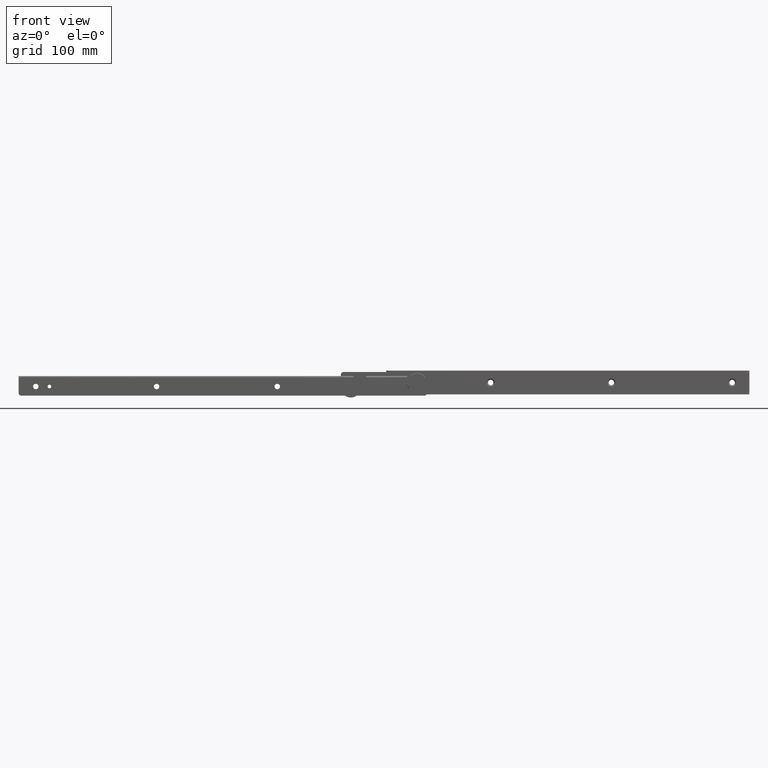
[diagram: clean part render]
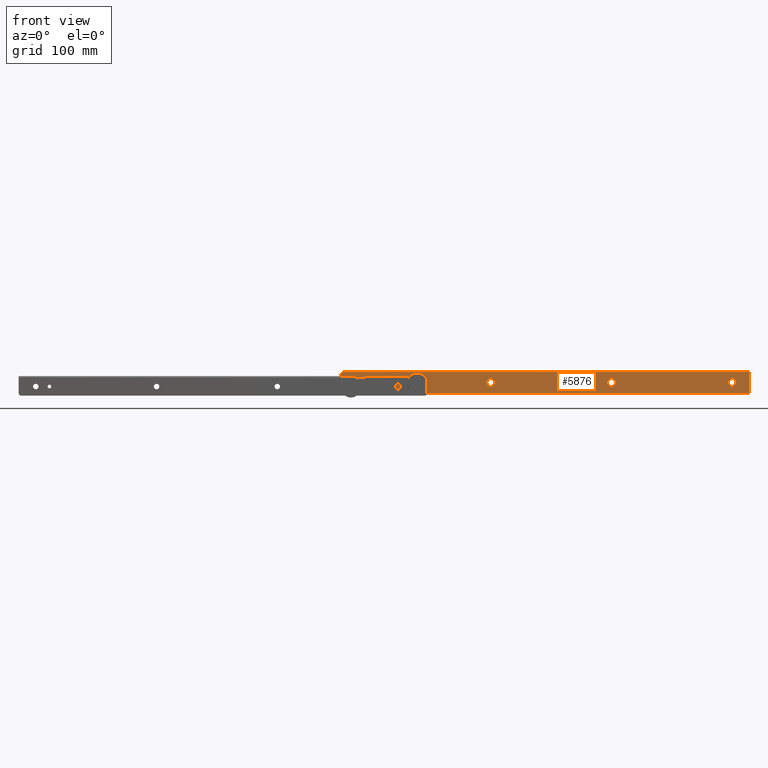
[diagram: same view with one face highlighted and labeled with its STEP entity id]
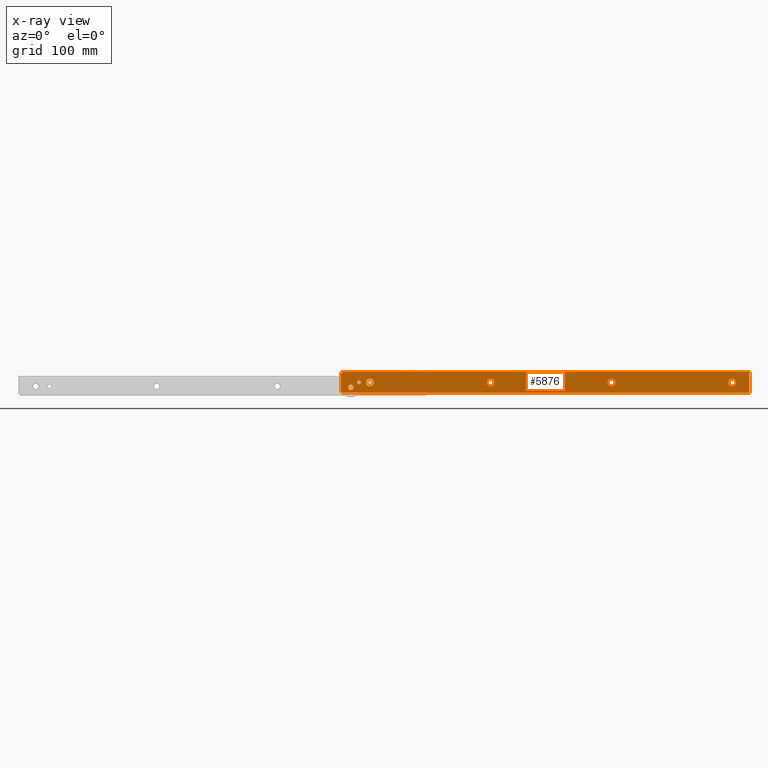
[diagram: x-ray of the same camera — body ghosted, the highlighted face saturated]
A machine part, front view. The second image highlights one B-rep face of the part: STEP entity #5876.
The next image is the same camera in x-ray: the body ghosted, the highlighted face saturated — about 0% of this face is hidden behind the body in this view.
In plain terms, the highlighted face is a freeform B-spline surface patch.
Its self-contained STEP definition (entity closure, byte-faithful):
#3986=CARTESIAN_POINT('',(27.733255280861350,-1.600000006890920,-7.633750456536660));
#3987=VERTEX_POINT('',#3986);
#3993=CARTESIAN_POINT('',(32.0,-1.599999999999910,-11.399999999999800));
#3994=VERTEX_POINT('',#3993);
#3995=CARTESIAN_POINT('',(32.0,-1.599999999999910,-11.399999999999800));
#3996=CARTESIAN_POINT('',(28.204396103444338,-1.599999999999910,-11.399999999999798));
#3997=CARTESIAN_POINT('',(27.733255280861357,-1.600000006890920,-7.633750456536660));
#4005=(BOUNDED_CURVE()B_SPLINE_CURVE(2,(#3995,#3996,#3997),.UNSPECIFIED.,.F.,.U.)B_SPLINE_CURVE_WITH_KNOTS((3,3),(0.500000000000000,0.728526067321901),.UNSPECIFIED.)CURVE()GEOMETRIC_REPRESENTATION_ITEM()RATIONAL_B_SPLINE_CURVE((1.0,0.732265058237234,0.954005423080094))REPRESENTATION_ITEM(''));
#4006=EDGE_CURVE('',#3994,#3987,#4005,.T.);
#4008=CARTESIAN_POINT('',(36.299836271252858,-1.600000002750304,-7.062475879268996));
#4009=VERTEX_POINT('',#4008);
#4010=CARTESIAN_POINT('',(36.299836271252858,-1.600000002750304,-7.062475879268996));
#4011=CARTESIAN_POINT('',(36.299999999999997,-1.599999999999910,-7.081237573401458));
#4012=CARTESIAN_POINT('',(36.299999999999997,-1.599999999999910,-7.099999999999799));
#4013=CARTESIAN_POINT('',(36.299999999999997,-1.599999999999911,-11.399999999999798));
#4014=CARTESIAN_POINT('',(32.0,-1.599999999999910,-11.399999999999800));
#4022=(BOUNDED_CURVE()B_SPLINE_CURVE(2,(#4010,#4011,#4012,#4013,#4014),.UNSPECIFIED.,.F.,.U.)B_SPLINE_CURVE_WITH_KNOTS((3,2,3),(0.248460104184678,0.250000000000000,0.500000000000000),.UNSPECIFIED.)CURVE()GEOMETRIC_REPRESENTATION_ITEM()RATIONAL_B_SPLINE_CURVE((0.996414024674496,0.998195899832052,1.0,0.707106781186547,1.0))REPRESENTATION_ITEM(''));
#4023=EDGE_CURVE('',#4009,#3994,#4022,.T.);
#4103=CARTESIAN_POINT('',(32.0,-1.599999999999910,-2.799999999999799));
#4104=VERTEX_POINT('',#4103);
#4105=CARTESIAN_POINT('',(32.0,-1.599999999999910,-2.799999999999799));
#4106=CARTESIAN_POINT('',(36.262638169733073,-1.599999999999911,-2.799999999999800));
#4107=CARTESIAN_POINT('',(36.299836271252858,-1.600000002750303,-7.062475879268996));
#4115=(BOUNDED_CURVE()B_SPLINE_CURVE(2,(#4105,#4106,#4107),.UNSPECIFIED.,.F.,.U.)B_SPLINE_CURVE_WITH_KNOTS((3,3),(0.0,0.248460104184678),.UNSPECIFIED.)CURVE()GEOMETRIC_REPRESENTATION_ITEM()RATIONAL_B_SPLINE_CURVE((1.0,0.708910881354496,0.996414024674496))REPRESENTATION_ITEM(''));
#4116=EDGE_CURVE('',#4104,#4009,#4115,.T.);
#4118=CARTESIAN_POINT('',(27.733255280861353,-1.600000006890920,-7.633750456536660));
#4119=CARTESIAN_POINT('',(27.699999999999999,-1.599999999999910,-7.367911235841441));
#4120=CARTESIAN_POINT('',(27.699999999999999,-1.599999999999910,-7.099999999999799));
#4121=CARTESIAN_POINT('',(27.700000000000006,-1.599999999999911,-2.799999999999800));
#4122=CARTESIAN_POINT('',(32.0,-1.599999999999910,-2.799999999999799));
#4130=(BOUNDED_CURVE()B_SPLINE_CURVE(2,(#4118,#4119,#4120,#4121,#4122),.UNSPECIFIED.,.F.,.U.)B_SPLINE_CURVE_WITH_KNOTS((3,2,3),(0.728526067321901,0.750000000000000,1.0),.UNSPECIFIED.)CURVE()GEOMETRIC_REPRESENTATION_ITEM()RATIONAL_B_SPLINE_CURVE((0.954005423080093,0.974841722949313,1.0,0.707106781186547,1.0))REPRESENTATION_ITEM(''));
#4131=EDGE_CURVE('',#3987,#4104,#4130,.T.);
#4172=CARTESIAN_POINT('',(160.733255280861300,-1.600000006890916,-7.633750456536859));
#4173=VERTEX_POINT('',#4172);
#4179=CARTESIAN_POINT('',(165.0,-1.599999999999910,-11.400000000000000));
#4180=VERTEX_POINT('',#4179);
#4181=CARTESIAN_POINT('',(165.0,-1.599999999999910,-11.400000000000000));
#4182=CARTESIAN_POINT('',(161.204396103444280,-1.599999999999910,-11.399999999999999));
#4183=CARTESIAN_POINT('',(160.733255280861330,-1.600000006890915,-7.633750456536859));
#4191=(BOUNDED_CURVE()B_SPLINE_CURVE(2,(#4181,#4182,#4183),.UNSPECIFIED.,.F.,.U.)B_SPLINE_CURVE_WITH_KNOTS((3,3),(0.500000000000000,0.728526067321901),.UNSPECIFIED.)CURVE()GEOMETRIC_REPRESENTATION_ITEM()RATIONAL_B_SPLINE_CURVE((1.0,0.732265058237234,0.954005423080094))REPRESENTATION_ITEM(''));
#4192=EDGE_CURVE('',#4180,#4173,#4191,.T.);
#4194=CARTESIAN_POINT('',(169.299836271252900,-1.600000002750300,-7.062475879269200));
#4195=VERTEX_POINT('',#4194);
#4196=CARTESIAN_POINT('',(169.299836271252900,-1.600000002750300,-7.062475879269200));
#4197=CARTESIAN_POINT('',(169.300000000000070,-1.599999999999910,-7.081237573401661));
#4198=CARTESIAN_POINT('',(169.300000000000010,-1.599999999999910,-7.100000000000001));
#4199=CARTESIAN_POINT('',(169.300000000000040,-1.599999999999911,-11.399999999999999));
#4200=CARTESIAN_POINT('',(165.0,-1.599999999999910,-11.400000000000000));
#4208=(BOUNDED_CURVE()B_SPLINE_CURVE(2,(#4196,#4197,#4198,#4199,#4200),.UNSPECIFIED.,.F.,.U.)B_SPLINE_CURVE_WITH_KNOTS((3,2,3),(0.248460104184678,0.250000000000000,0.500000000000000),.UNSPECIFIED.)CURVE()GEOMETRIC_REPRESENTATION_ITEM()RATIONAL_B_SPLINE_CURVE((0.996414024674496,0.998195899832052,1.0,0.707106781186547,1.0))REPRESENTATION_ITEM(''));
#4209=EDGE_CURVE('',#4195,#4180,#4208,.T.);
#4289=CARTESIAN_POINT('',(165.0,-1.599999999999910,-2.800000000000000));
#4290=VERTEX_POINT('',#4289);
#4291=CARTESIAN_POINT('',(165.0,-1.599999999999910,-2.800000000000000));
#4292=CARTESIAN_POINT('',(169.262638169733090,-1.599999999999911,-2.800000000000000));
#4293=CARTESIAN_POINT('',(169.299836271252900,-1.600000002750300,-7.062475879269200));
#4301=(BOUNDED_CURVE()B_SPLINE_CURVE(2,(#4291,#4292,#4293),.UNSPECIFIED.,.F.,.U.)B_SPLINE_CURVE_WITH_KNOTS((3,3),(0.0,0.248460104184678),.UNSPECIFIED.)CURVE()GEOMETRIC_REPRESENTATION_ITEM()RATIONAL_B_SPLINE_CURVE((1.0,0.708910881354496,0.996414024674496))REPRESENTATION_ITEM(''));
#4302=EDGE_CURVE('',#4290,#4195,#4301,.T.);
#4304=CARTESIAN_POINT('',(160.733255280861330,-1.600000006890915,-7.633750456536859));
#4305=CARTESIAN_POINT('',(160.699999999999990,-1.599999999999911,-7.367911235841640));
#4306=CARTESIAN_POINT('',(160.699999999999990,-1.599999999999910,-7.100000000000001));
#4307=CARTESIAN_POINT('',(160.700000000000050,-1.599999999999911,-2.800000000000000));
#4308=CARTESIAN_POINT('',(165.0,-1.599999999999910,-2.800000000000000));
#4316=(BOUNDED_CURVE()B_SPLINE_CURVE(2,(#4304,#4305,#4306,#4307,#4308),.UNSPECIFIED.,.F.,.U.)B_SPLINE_CURVE_WITH_KNOTS((3,2,3),(0.728526067321901,0.750000000000000,1.0),.UNSPECIFIED.)CURVE()GEOMETRIC_REPRESENTATION_ITEM()RATIONAL_B_SPLINE_CURVE((0.954005423080094,0.974841722949313,1.0,0.707106781186547,1.0))REPRESENTATION_ITEM(''));
#4317=EDGE_CURVE('',#4173,#4290,#4316,.T.);
#4358=CARTESIAN_POINT('',(293.733255280861270,-1.600000006890920,-7.633750456536860));
#4359=VERTEX_POINT('',#4358);
#4365=CARTESIAN_POINT('',(298.0,-1.599999999999910,-11.400000000000000));
#4366=VERTEX_POINT('',#4365);
#4367=CARTESIAN_POINT('',(298.0,-1.599999999999910,-11.400000000000000));
#4368=CARTESIAN_POINT('',(294.204396103444370,-1.599999999999910,-11.399999999999999));
#4369=CARTESIAN_POINT('',(293.733255280861270,-1.600000006890920,-7.633750456536860));
#4377=(BOUNDED_CURVE()B_SPLINE_CURVE(2,(#4367,#4368,#4369),.UNSPECIFIED.,.F.,.U.)B_SPLINE_CURVE_WITH_KNOTS((3,3),(0.500000000000000,0.728526067321901),.UNSPECIFIED.)CURVE()GEOMETRIC_REPRESENTATION_ITEM()RATIONAL_B_SPLINE_CURVE((1.0,0.732265058237234,0.954005423080094))REPRESENTATION_ITEM(''));
#4378=EDGE_CURVE('',#4366,#4359,#4377,.T.);
#4380=CARTESIAN_POINT('',(302.299836271252790,-1.600000002750307,-7.062475879269200));
#4381=VERTEX_POINT('',#4380);
#4382=CARTESIAN_POINT('',(302.299836271252900,-1.600000002750307,-7.062475879269200));
#4383=CARTESIAN_POINT('',(302.300000000000070,-1.599999999999910,-7.081237573401661));
#4384=CARTESIAN_POINT('',(302.300000000000010,-1.599999999999910,-7.100000000000001));
#4385=CARTESIAN_POINT('',(302.300000000000010,-1.599999999999911,-11.399999999999999));
#4386=CARTESIAN_POINT('',(298.0,-1.599999999999910,-11.400000000000000));
#4394=(BOUNDED_CURVE()B_SPLINE_CURVE(2,(#4382,#4383,#4384,#4385,#4386),.UNSPECIFIED.,.F.,.U.)B_SPLINE_CURVE_WITH_KNOTS((3,2,3),(0.248460104184678,0.250000000000000,0.500000000000000),.UNSPECIFIED.)CURVE()GEOMETRIC_REPRESENTATION_ITEM()RATIONAL_B_SPLINE_CURVE((0.996414024674496,0.998195899832052,1.0,0.707106781186547,1.0))REPRESENTATION_ITEM(''));
#4395=EDGE_CURVE('',#4381,#4366,#4394,.T.);
#4475=CARTESIAN_POINT('',(298.0,-1.599999999999910,-2.800000000000000));
#4476=VERTEX_POINT('',#4475);
#4477=CARTESIAN_POINT('',(298.0,-1.599999999999910,-2.800000000000000));
#4478=CARTESIAN_POINT('',(302.262638169733010,-1.599999999999911,-2.800000000000000));
#4479=CARTESIAN_POINT('',(302.299836271252900,-1.600000002750307,-7.062475879269200));
#4487=(BOUNDED_CURVE()B_SPLINE_CURVE(2,(#4477,#4478,#4479),.UNSPECIFIED.,.F.,.U.)B_SPLINE_CURVE_WITH_KNOTS((3,3),(0.0,0.248460104184678),.UNSPECIFIED.)CURVE()GEOMETRIC_REPRESENTATION_ITEM()RATIONAL_B_SPLINE_CURVE((1.0,0.708910881354496,0.996414024674496))REPRESENTATION_ITEM(''));
#4488=EDGE_CURVE('',#4476,#4381,#4487,.T.);
#4490=CARTESIAN_POINT('',(293.733255280861270,-1.600000006890920,-7.633750456536860));
#4491=CARTESIAN_POINT('',(293.699999999999930,-1.599999999999911,-7.367911235841640));
#4492=CARTESIAN_POINT('',(293.699999999999990,-1.599999999999910,-7.100000000000001));
#4493=CARTESIAN_POINT('',(293.700000000000050,-1.599999999999911,-2.800000000000000));
#4494=CARTESIAN_POINT('',(298.0,-1.599999999999910,-2.800000000000000));
#4502=(BOUNDED_CURVE()B_SPLINE_CURVE(2,(#4490,#4491,#4492,#4493,#4494),.UNSPECIFIED.,.F.,.U.)B_SPLINE_CURVE_WITH_KNOTS((3,2,3),(0.728526067321901,0.750000000000000,1.0),.UNSPECIFIED.)CURVE()GEOMETRIC_REPRESENTATION_ITEM()RATIONAL_B_SPLINE_CURVE((0.954005423080094,0.974841722949313,1.0,0.707106781186547,1.0))REPRESENTATION_ITEM(''));
#4503=EDGE_CURVE('',#4359,#4476,#4502,.T.);
#4544=CARTESIAN_POINT('',(426.733255280861270,-1.600000006890942,-7.633750456536869));
#4545=VERTEX_POINT('',#4544);
#4551=CARTESIAN_POINT('',(431.0,-1.599999999999910,-11.400000000000000));
#4552=VERTEX_POINT('',#4551);
#4553=CARTESIAN_POINT('',(431.0,-1.599999999999910,-11.400000000000000));
#4554=CARTESIAN_POINT('',(427.204396103444250,-1.599999999999910,-11.399999999999999));
#4555=CARTESIAN_POINT('',(426.733255280861270,-1.600000006890942,-7.633750456536869));
#4563=(BOUNDED_CURVE()B_SPLINE_CURVE(2,(#4553,#4554,#4555),.UNSPECIFIED.,.F.,.U.)B_SPLINE_CURVE_WITH_KNOTS((3,3),(0.500000000000000,0.728526067321901),.UNSPECIFIED.)CURVE()GEOMETRIC_REPRESENTATION_ITEM()RATIONAL_B_SPLINE_CURVE((1.0,0.732265058237234,0.954005423080094))REPRESENTATION_ITEM(''));
#4564=EDGE_CURVE('',#4552,#4545,#4563,.T.);
#4566=CARTESIAN_POINT('',(435.299836271252790,-1.600000002750307,-7.062475879269199));
#4567=VERTEX_POINT('',#4566);
#4568=CARTESIAN_POINT('',(435.299836271252790,-1.600000002750308,-7.062475879269199));
#4569=CARTESIAN_POINT('',(435.299999999999950,-1.599999999999910,-7.081237573401660));
#4570=CARTESIAN_POINT('',(435.300000000000010,-1.599999999999910,-7.100000000000001));
#4571=CARTESIAN_POINT('',(435.299999999999950,-1.599999999999911,-11.399999999999999));
#4572=CARTESIAN_POINT('',(431.0,-1.599999999999910,-11.400000000000000));
#4580=(BOUNDED_CURVE()B_SPLINE_CURVE(2,(#4568,#4569,#4570,#4571,#4572),.UNSPECIFIED.,.F.,.U.)B_SPLINE_CURVE_WITH_KNOTS((3,2,3),(0.248460104184678,0.250000000000000,0.500000000000000),.UNSPECIFIED.)CURVE()GEOMETRIC_REPRESENTATION_ITEM()RATIONAL_B_SPLINE_CURVE((0.996414024674496,0.998195899832052,1.0,0.707106781186547,1.0))REPRESENTATION_ITEM(''));
#4581=EDGE_CURVE('',#4567,#4552,#4580,.T.);
#4661=CARTESIAN_POINT('',(431.0,-1.599999999999910,-2.800000000000000));
#4662=VERTEX_POINT('',#4661);
#4663=CARTESIAN_POINT('',(431.0,-1.599999999999910,-2.800000000000000));
#4664=CARTESIAN_POINT('',(435.262638169732950,-1.599999999999911,-2.800000000000000));
#4665=CARTESIAN_POINT('',(435.299836271252840,-1.600000002750307,-7.062475879269199));
#4673=(BOUNDED_CURVE()B_SPLINE_CURVE(2,(#4663,#4664,#4665),.UNSPECIFIED.,.F.,.U.)B_SPLINE_CURVE_WITH_KNOTS((3,3),(0.0,0.248460104184678),.UNSPECIFIED.)CURVE()GEOMETRIC_REPRESENTATION_ITEM()RATIONAL_B_SPLINE_CURVE((1.0,0.708910881354496,0.996414024674496))REPRESENTATION_ITEM(''));
#4674=EDGE_CURVE('',#4662,#4567,#4673,.T.);
#4676=CARTESIAN_POINT('',(426.733255280861330,-1.600000006890942,-7.633750456536869));
#4677=CARTESIAN_POINT('',(426.700000000000050,-1.599999999999910,-7.367911235841648));
#4678=CARTESIAN_POINT('',(426.699999999999990,-1.599999999999910,-7.100000000000001));
#4679=CARTESIAN_POINT('',(426.699999999999820,-1.599999999999911,-2.800000000000000));
#4680=CARTESIAN_POINT('',(431.0,-1.599999999999910,-2.800000000000000));
#4688=(BOUNDED_CURVE()B_SPLINE_CURVE(2,(#4676,#4677,#4678,#4679,#4680),.UNSPECIFIED.,.F.,.U.)B_SPLINE_CURVE_WITH_KNOTS((3,2,3),(0.728526067321901,0.750000000000000,1.0),.UNSPECIFIED.)CURVE()GEOMETRIC_REPRESENTATION_ITEM()RATIONAL_B_SPLINE_CURVE((0.954005423080093,0.974841722949312,1.0,0.707106781186547,1.0))REPRESENTATION_ITEM(''));
#4689=EDGE_CURVE('',#4545,#4662,#4688,.T.);
#4730=CARTESIAN_POINT('',(8.072814669445494,-1.599999999999935,-12.966177607980541));
#4731=VERTEX_POINT('',#4730);
#4737=CARTESIAN_POINT('',(11.0,-1.599999999999935,-15.549999999999800));
#4738=VERTEX_POINT('',#4737);
#4739=CARTESIAN_POINT('',(11.0,-1.599999999999935,-15.549999999999800));
#4740=CARTESIAN_POINT('',(8.396039132865415,-1.599999999999934,-15.549999999999798));
#4741=CARTESIAN_POINT('',(8.072814669445496,-1.599999999999935,-12.966177607980539));
#4749=(BOUNDED_CURVE()B_SPLINE_CURVE(2,(#4739,#4740,#4741),.UNSPECIFIED.,.F.,.U.)B_SPLINE_CURVE_WITH_KNOTS((3,3),(0.500000000000000,0.728526070816675),.UNSPECIFIED.)CURVE()GEOMETRIC_REPRESENTATION_ITEM()RATIONAL_B_SPLINE_CURVE((1.0,0.732265054142853,0.954005429862098))REPRESENTATION_ITEM(''));
#4750=EDGE_CURVE('',#4738,#4731,#4749,.T.);
#4752=CARTESIAN_POINT('',(13.949887672970361,-1.599999999999935,-12.574256712379579));
#4753=VERTEX_POINT('',#4752);
#4754=CARTESIAN_POINT('',(13.949887672970366,-1.599999999999935,-12.574256712379585));
#4755=CARTESIAN_POINT('',(13.950000000000001,-1.599999999999935,-12.587128107178261));
#4756=CARTESIAN_POINT('',(13.949999999999999,-1.599999999999935,-12.599999999999801));
#4757=CARTESIAN_POINT('',(13.949999999999999,-1.599999999999935,-15.549999999999795));
#4758=CARTESIAN_POINT('',(11.0,-1.599999999999935,-15.549999999999800));
#4766=(BOUNDED_CURVE()B_SPLINE_CURVE(2,(#4754,#4755,#4756,#4757,#4758),.UNSPECIFIED.,.F.,.U.)B_SPLINE_CURVE_WITH_KNOTS((3,2,3),(0.248460104721566,0.250000000000000,0.500000000000000),.UNSPECIFIED.)CURVE()GEOMETRIC_REPRESENTATION_ITEM()RATIONAL_B_SPLINE_CURVE((0.996414025917006,0.998195900461056,1.0,0.707106781186548,1.0))REPRESENTATION_ITEM(''));
#4767=EDGE_CURVE('',#4753,#4738,#4766,.T.);
#4847=CARTESIAN_POINT('',(11.0,-1.599999999999935,-9.649999999999800));
#4848=VERTEX_POINT('',#4847);
#4849=CARTESIAN_POINT('',(11.0,-1.599999999999935,-9.649999999999800));
#4850=CARTESIAN_POINT('',(13.924368055591245,-1.599999999999935,-9.649999999999800));
#4851=CARTESIAN_POINT('',(13.949887672970366,-1.599999999999935,-12.574256712379585));
#4859=(BOUNDED_CURVE()B_SPLINE_CURVE(2,(#4849,#4850,#4851),.UNSPECIFIED.,.F.,.U.)B_SPLINE_CURVE_WITH_KNOTS((3,3),(0.0,0.248460104721566),.UNSPECIFIED.)CURVE()GEOMETRIC_REPRESENTATION_ITEM()RATIONAL_B_SPLINE_CURVE((1.0,0.708910880725492,0.996414025917006))REPRESENTATION_ITEM(''));
#4860=EDGE_CURVE('',#4848,#4753,#4859,.T.);
#4862=CARTESIAN_POINT('',(8.072814669445494,-1.599999999999935,-12.966177607980542));
#4863=CARTESIAN_POINT('',(8.050000000000001,-1.599999999999935,-12.783799538090454));
#4864=CARTESIAN_POINT('',(8.050000000000001,-1.599999999999935,-12.599999999999801));
#4865=CARTESIAN_POINT('',(8.050000000000001,-1.599999999999935,-9.649999999999800));
#4866=CARTESIAN_POINT('',(11.0,-1.599999999999935,-9.649999999999800));
#4874=(BOUNDED_CURVE()B_SPLINE_CURVE(2,(#4862,#4863,#4864,#4865,#4866),.UNSPECIFIED.,.F.,.U.)B_SPLINE_CURVE_WITH_KNOTS((3,2,3),(0.728526070816676,0.750000000000000,1.0),.UNSPECIFIED.)CURVE()GEOMETRIC_REPRESENTATION_ITEM()RATIONAL_B_SPLINE_CURVE((0.954005429862099,0.974841727043696,1.0,0.707106781186548,1.0))REPRESENTATION_ITEM(''));
#4875=EDGE_CURVE('',#4731,#4848,#4874,.T.);
#4916=CARTESIAN_POINT('',(18.015467575814331,-1.599999999999935,-7.348256031861590));
#4917=VERTEX_POINT('',#4916);
#4923=CARTESIAN_POINT('',(20.0,-1.599999999999935,-9.099999999999799));
#4924=VERTEX_POINT('',#4923);
#4925=CARTESIAN_POINT('',(20.0,-1.599999999999935,-9.099999999999799));
#4926=CARTESIAN_POINT('',(18.234602849370109,-1.599999999999935,-9.099999999999801));
#4927=CARTESIAN_POINT('',(18.015467575814334,-1.599999999999935,-7.348256031861590));
#4935=(BOUNDED_CURVE()B_SPLINE_CURVE(2,(#4925,#4926,#4927),.UNSPECIFIED.,.F.,.U.)B_SPLINE_CURVE_WITH_KNOTS((3,3),(0.500000000000000,0.728526066321035),.UNSPECIFIED.)CURVE()GEOMETRIC_REPRESENTATION_ITEM()RATIONAL_B_SPLINE_CURVE((1.0,0.732265059409822,0.954005421137800))REPRESENTATION_ITEM(''));
#4936=EDGE_CURVE('',#4924,#4917,#4935,.T.);
#4938=CARTESIAN_POINT('',(21.999923846055569,-1.599999999999935,-7.082546920663972));
#4939=VERTEX_POINT('',#4938);
#4940=CARTESIAN_POINT('',(21.999923846055566,-1.599999999999936,-7.082546920663972));
#4941=CARTESIAN_POINT('',(21.999999999999996,-1.599999999999935,-7.091273290018841));
#4942=CARTESIAN_POINT('',(22.0,-1.599999999999935,-7.099999999999799));
#4943=CARTESIAN_POINT('',(22.000000000000007,-1.599999999999935,-9.099999999999799));
#4944=CARTESIAN_POINT('',(20.0,-1.599999999999935,-9.099999999999799));
#4952=(BOUNDED_CURVE()B_SPLINE_CURVE(2,(#4940,#4941,#4942,#4943,#4944),.UNSPECIFIED.,.F.,.U.)B_SPLINE_CURVE_WITH_KNOTS((3,2,3),(0.248460104196088,0.250000000000000,0.500000000000000),.UNSPECIFIED.)CURVE()GEOMETRIC_REPRESENTATION_ITEM()RATIONAL_B_SPLINE_CURVE((0.996414024700903,0.998195899845420,1.0,0.707106781186548,1.0))REPRESENTATION_ITEM(''));
#4953=EDGE_CURVE('',#4939,#4924,#4952,.T.);
#5033=CARTESIAN_POINT('',(20.0,-1.599999999999935,-5.099999999999799));
#5034=VERTEX_POINT('',#5033);
#5035=CARTESIAN_POINT('',(20.0,-1.599999999999935,-5.099999999999799));
#5036=CARTESIAN_POINT('',(21.982622404655455,-1.599999999999936,-5.099999999999799));
#5037=CARTESIAN_POINT('',(21.999923846055562,-1.599999999999935,-7.082546920663973));
#5045=(BOUNDED_CURVE()B_SPLINE_CURVE(2,(#5035,#5036,#5037),.UNSPECIFIED.,.F.,.U.)B_SPLINE_CURVE_WITH_KNOTS((3,3),(0.0,0.248460104196089),.UNSPECIFIED.)CURVE()GEOMETRIC_REPRESENTATION_ITEM()RATIONAL_B_SPLINE_CURVE((1.0,0.708910881341127,0.996414024700903))REPRESENTATION_ITEM(''));
#5046=EDGE_CURVE('',#5034,#4939,#5045,.T.);
#5048=CARTESIAN_POINT('',(18.015467575814338,-1.599999999999936,-7.348256031861590));
#5049=CARTESIAN_POINT('',(18.000000000000007,-1.599999999999935,-7.224609883093208));
#5050=CARTESIAN_POINT('',(18.0,-1.599999999999935,-7.099999999999799));
#5051=CARTESIAN_POINT('',(18.000000000000007,-1.599999999999935,-5.099999999999798));
#5052=CARTESIAN_POINT('',(20.0,-1.599999999999935,-5.099999999999799));
#5060=(BOUNDED_CURVE()B_SPLINE_CURVE(2,(#5048,#5049,#5050,#5051,#5052),.UNSPECIFIED.,.F.,.U.)B_SPLINE_CURVE_WITH_KNOTS((3,2,3),(0.728526066321034,0.750000000000000,1.0),.UNSPECIFIED.)CURVE()GEOMETRIC_REPRESENTATION_ITEM()RATIONAL_B_SPLINE_CURVE((0.954005421137798,0.974841721776725,1.0,0.707106781186548,1.0))REPRESENTATION_ITEM(''));
#5061=EDGE_CURVE('',#4917,#5034,#5060,.T.);
#5325=CARTESIAN_POINT('',(3.0,-1.599999999999910,4.400000000000205));
#5326=VERTEX_POINT('',#5325);
#5327=CARTESIAN_POINT('',(0.0,-1.599999999999910,1.400000000000204));
#5328=VERTEX_POINT('',#5327);
#5329=CARTESIAN_POINT('',(3.0,-1.599999999999910,4.400000000000204));
#5330=CARTESIAN_POINT('',(0.0,-1.599999999999911,4.400000000000205));
#5331=CARTESIAN_POINT('',(0.0,-1.599999999999910,1.400000000000204));
#5339=(BOUNDED_CURVE()B_SPLINE_CURVE(2,(#5329,#5330,#5331),.UNSPECIFIED.,.F.,.U.)CURVE()GEOMETRIC_REPRESENTATION_ITEM()QUASI_UNIFORM_CURVE()RATIONAL_B_SPLINE_CURVE((1.0,0.707106781186548,1.0))REPRESENTATION_ITEM(''));
#5340=EDGE_CURVE('',#5326,#5328,#5339,.T.);
#5405=CARTESIAN_POINT('',(3.0,-1.599999999999910,-18.600000000000001));
#5406=VERTEX_POINT('',#5405);
#5412=CARTESIAN_POINT('',(0.0,-1.599999999999910,-15.600000000000000));
#5413=VERTEX_POINT('',#5412);
#5414=CARTESIAN_POINT('',(0.0,-1.599999999999910,-15.600000000000000));
#5415=CARTESIAN_POINT('',(0.0,-1.599999999999911,-18.599999999999991));
#5416=CARTESIAN_POINT('',(3.0,-1.599999999999910,-18.600000000000001));
#5424=(BOUNDED_CURVE()B_SPLINE_CURVE(2,(#5414,#5415,#5416),.UNSPECIFIED.,.F.,.U.)CURVE()GEOMETRIC_REPRESENTATION_ITEM()QUASI_UNIFORM_CURVE()RATIONAL_B_SPLINE_CURVE((1.0,0.707106781186548,1.0))REPRESENTATION_ITEM(''));
#5425=EDGE_CURVE('',#5413,#5406,#5424,.T.);
#5448=CARTESIAN_POINT('',(50.0,-1.599999999999935,4.400000000000205));
#5449=VERTEX_POINT('',#5448);
#5450=CARTESIAN_POINT('',(50.0,-1.599999999999935,4.400000000000205));
#5451=CARTESIAN_POINT('',(3.0,-1.599999999999910,4.400000000000205));
#5452=QUASI_UNIFORM_CURVE('',1,(#5450,#5451),.UNSPECIFIED.,.F.,.U.);
#5453=EDGE_CURVE('',#5449,#5326,#5452,.T.);
#5503=CARTESIAN_POINT('',(22.0,-1.599999999999935,-18.600000000000001));
#5504=VERTEX_POINT('',#5503);
#5505=CARTESIAN_POINT('',(3.0,-1.599999999999910,-18.600000000000001));
#5506=CARTESIAN_POINT('',(22.0,-1.599999999999935,-18.600000000000001));
#5507=QUASI_UNIFORM_CURVE('',1,(#5505,#5506),.UNSPECIFIED.,.F.,.U.);
#5508=EDGE_CURVE('',#5406,#5504,#5507,.T.);
#5572=CARTESIAN_POINT('',(0.0,-1.599999999999910,1.400000000000204));
#5573=CARTESIAN_POINT('',(0.0,-1.599999999999910,-15.600000000000000));
#5574=QUASI_UNIFORM_CURVE('',1,(#5572,#5573),.UNSPECIFIED.,.F.,.U.);
#5575=EDGE_CURVE('',#5328,#5413,#5574,.T.);
#5594=CARTESIAN_POINT('',(450.0,-1.599999999999910,4.400000000000205));
#5595=VERTEX_POINT('',#5594);
#5601=CARTESIAN_POINT('',(450.0,-1.599999999999910,-18.600000000000001));
#5602=VERTEX_POINT('',#5601);
#5603=CARTESIAN_POINT('',(450.0,-1.599999999999910,4.400000000000205));
#5604=CARTESIAN_POINT('',(450.0,-1.599999999999910,-18.600000000000001));
#5605=QUASI_UNIFORM_CURVE('',1,(#5603,#5604),.UNSPECIFIED.,.F.,.U.);
#5606=EDGE_CURVE('',#5595,#5602,#5605,.T.);
#5811=CARTESIAN_POINT('',(450.0,-1.599999999999910,-18.600000000000001));
#5812=CARTESIAN_POINT('',(22.0,-1.599999999999935,-18.600000000000001));
#5813=QUASI_UNIFORM_CURVE('',1,(#5811,#5812),.UNSPECIFIED.,.F.,.U.);
#5814=EDGE_CURVE('',#5602,#5504,#5813,.T.);
#5821=CARTESIAN_POINT('',(-22.477499127812742,-1.599999999999910,-19.748850387236629));
#5822=CARTESIAN_POINT('',(-22.477499127812742,-1.599999999999910,5.548850592872861));
#5823=CARTESIAN_POINT('',(472.477511197753300,-1.599999999999910,-19.748850387236629));
#5824=CARTESIAN_POINT('',(472.477511197753300,-1.599999999999910,5.548850592872861));
#5825=B_SPLINE_SURFACE_WITH_KNOTS('',1,1,((#5821,#5823),(#5822,#5824)),.UNSPECIFIED.,.F.,.F.,.U.,(2,2),(2,2),(0.0,25.297700980109489),(0.0,494.955010325565980),.UNSPECIFIED.);
#5826=ORIENTED_EDGE('',*,*,#5575,.T.);
#5827=ORIENTED_EDGE('',*,*,#5425,.T.);
#5828=ORIENTED_EDGE('',*,*,#5508,.T.);
#5829=ORIENTED_EDGE('',*,*,#5814,.F.);
#5830=ORIENTED_EDGE('',*,*,#5606,.F.);
#5831=CARTESIAN_POINT('',(450.0,-1.599999999999910,4.400000000000205));
#5832=CARTESIAN_POINT('',(50.0,-1.599999999999935,4.400000000000205));
#5833=QUASI_UNIFORM_CURVE('',1,(#5831,#5832),.UNSPECIFIED.,.F.,.U.);
#5834=EDGE_CURVE('',#5595,#5449,#5833,.T.);
#5835=ORIENTED_EDGE('',*,*,#5834,.T.);
#5836=ORIENTED_EDGE('',*,*,#5453,.T.);
#5837=ORIENTED_EDGE('',*,*,#5340,.T.);
#5838=EDGE_LOOP('',(#5826,#5827,#5828,#5829,#5830,#5835,#5836,#5837));
#5839=FACE_OUTER_BOUND('',#5838,.T.);
#5840=ORIENTED_EDGE('',*,*,#5046,.T.);
#5841=ORIENTED_EDGE('',*,*,#4953,.T.);
#5842=ORIENTED_EDGE('',*,*,#4936,.T.);
#5843=ORIENTED_EDGE('',*,*,#5061,.T.);
#5844=EDGE_LOOP('',(#5840,#5841,#5842,#5843));
#5845=FACE_BOUND('',#5844,.T.);
#5846=ORIENTED_EDGE('',*,*,#4860,.T.);
#5847=ORIENTED_EDGE('',*,*,#4767,.T.);
#5848=ORIENTED_EDGE('',*,*,#4750,.T.);
#5849=ORIENTED_EDGE('',*,*,#4875,.T.);
#5850=EDGE_LOOP('',(#5846,#5847,#5848,#5849));
#5851=FACE_BOUND('',#5850,.T.);
#5852=ORIENTED_EDGE('',*,*,#4674,.T.);
#5853=ORIENTED_EDGE('',*,*,#4581,.T.);
#5854=ORIENTED_EDGE('',*,*,#4564,.T.);
#5855=ORIENTED_EDGE('',*,*,#4689,.T.);
#5856=EDGE_LOOP('',(#5852,#5853,#5854,#5855));
#5857=FACE_BOUND('',#5856,.T.);
#5858=ORIENTED_EDGE('',*,*,#4488,.T.);
#5859=ORIENTED_EDGE('',*,*,#4395,.T.);
#5860=ORIENTED_EDGE('',*,*,#4378,.T.);
#5861=ORIENTED_EDGE('',*,*,#4503,.T.);
#5862=EDGE_LOOP('',(#5858,#5859,#5860,#5861));
#5863=FACE_BOUND('',#5862,.T.);
#5864=ORIENTED_EDGE('',*,*,#4302,.T.);
#5865=ORIENTED_EDGE('',*,*,#4209,.T.);
#5866=ORIENTED_EDGE('',*,*,#4192,.T.);
#5867=ORIENTED_EDGE('',*,*,#4317,.T.);
#5868=EDGE_LOOP('',(#5864,#5865,#5866,#5867));
#5869=FACE_BOUND('',#5868,.T.);
#5870=ORIENTED_EDGE('',*,*,#4116,.T.);
#5871=ORIENTED_EDGE('',*,*,#4023,.T.);
#5872=ORIENTED_EDGE('',*,*,#4006,.T.);
#5873=ORIENTED_EDGE('',*,*,#4131,.T.);
#5874=EDGE_LOOP('',(#5870,#5871,#5872,#5873));
#5875=FACE_BOUND('',#5874,.T.);
#5876=ADVANCED_FACE('',(#5839,#5845,#5851,#5857,#5863,#5869,#5875),#5825,.F.);